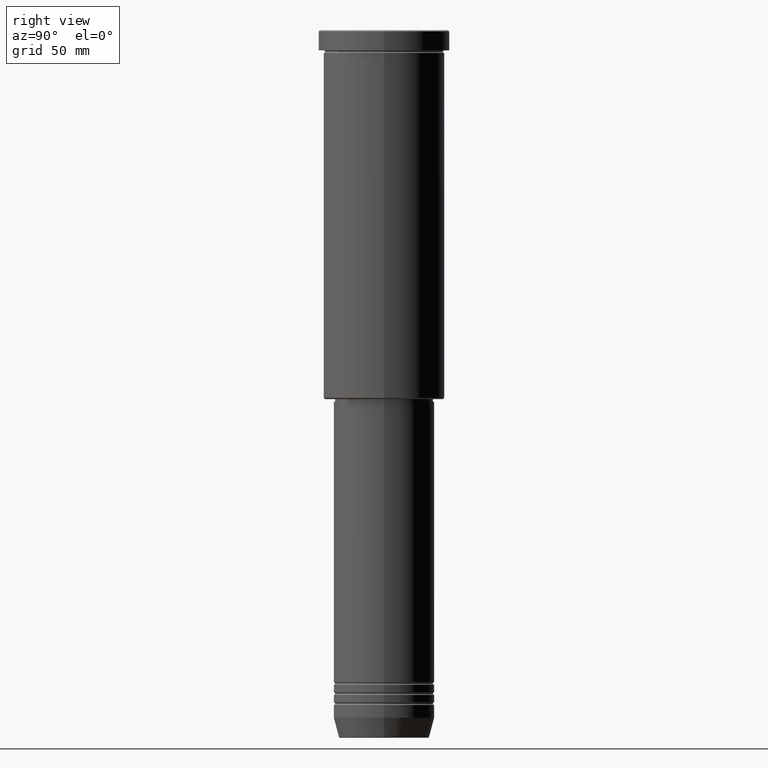
[diagram: clean part render]
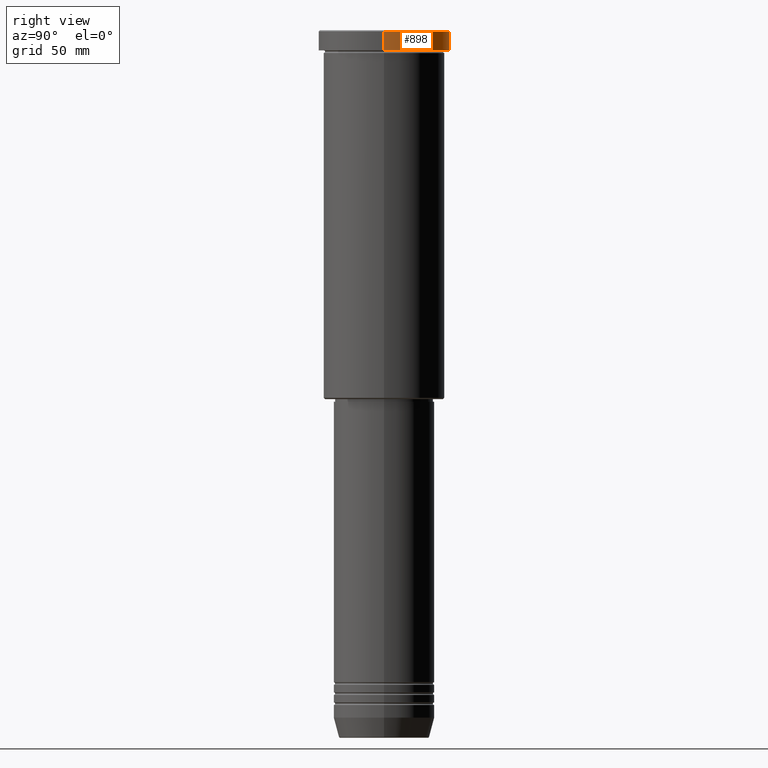
[diagram: same view with one face highlighted and labeled with its STEP entity id]
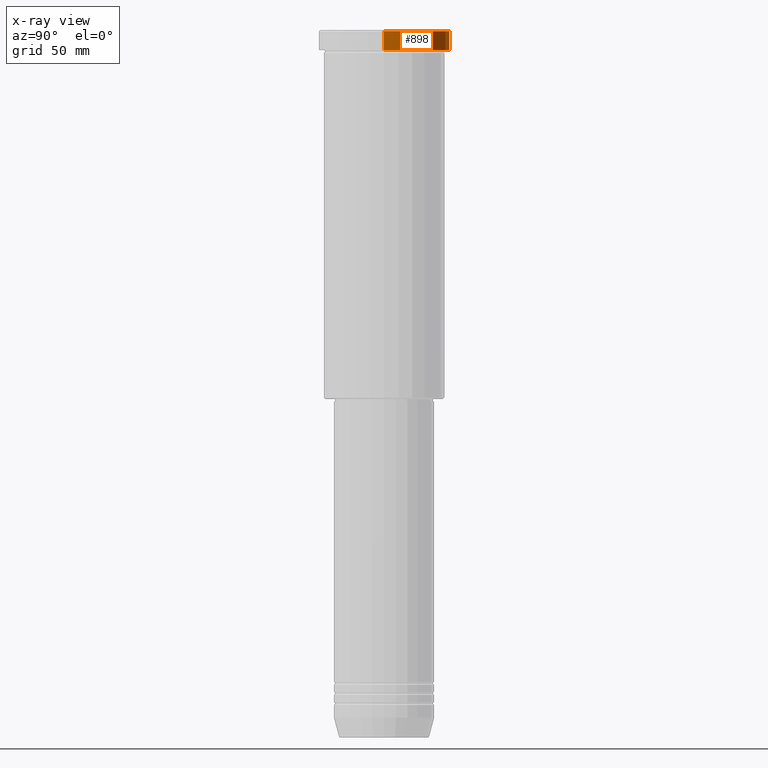
[diagram: x-ray of the same camera — body ghosted, the highlighted face saturated]
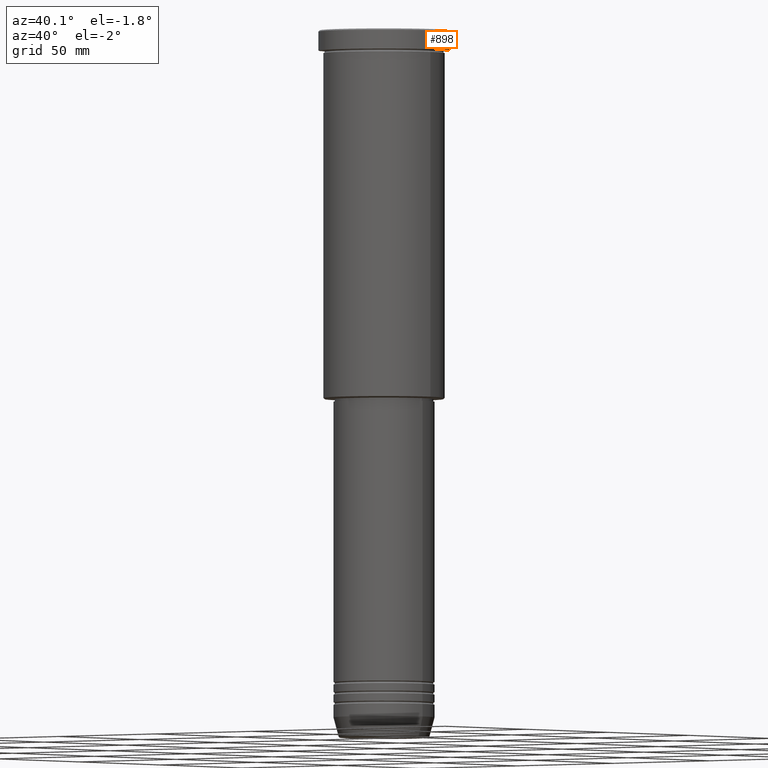
[diagram: same view with one face highlighted and labeled with its STEP entity id]
A machine part, right view. The second image highlights one B-rep face of the part: STEP entity #898.
The next image is the same camera in x-ray: the body ghosted, the highlighted face saturated — about 0% of this face is hidden behind the body in this view.
A second angle (auxiliary view) of the same face is appended — the face is thin or edge-on in the first view.
In plain terms, the highlighted cylindrical surface (partial cylindrical patch) has radius 26 mm, axis along (-0, -0, 1).
Its self-contained STEP definition (entity closure, byte-faithful):
#3 = CARTESIAN_POINT ( 'NONE',  ( 0.000000000000000000, 0.000000000000000000, -0.5000000000000525135 ) ) ;
#23 = DIRECTION ( 'NONE',  ( 1.000000000000000000, 0.000000000000000000, 0.000000000000000000 ) ) ;
#45 = FACE_OUTER_BOUND ( 'NONE', #63, .T. ) ;
#63 = EDGE_LOOP ( 'NONE', ( #905, #684, #192, #468 ) ) ;
#85 = DIRECTION ( 'NONE',  ( 1.000000000000000000, 0.000000000000000000, 0.000000000000000000 ) ) ;
#117 = CARTESIAN_POINT ( 'NONE',  ( 26.00000000000000000, 0.000000000000000000, 0.000000000000000000 ) ) ;
#139 = CYLINDRICAL_SURFACE ( 'NONE', #1042, 26.00000000000000000 ) ;
#142 = VECTOR ( 'NONE', #147, 1000.000000000000000 ) ;
#147 = DIRECTION ( 'NONE',  ( -0.000000000000000000, -0.000000000000000000, 1.000000000000000000 ) ) ;
#192 = ORIENTED_EDGE ( 'NONE', *, *, #233, .T. ) ;
#205 = CARTESIAN_POINT ( 'NONE',  ( 26.00000000000000000, 0.000000000000000000, -7.999999999999992895 ) ) ;
#215 = AXIS2_PLACEMENT_3D ( 'NONE', #305, #895, #85 ) ;
#229 = VERTEX_POINT ( 'NONE', #772 ) ;
#233 = EDGE_CURVE ( 'NONE', #544, #259, #316, .T. ) ;
#239 = LINE ( 'NONE', #480, #142 ) ;
#259 = VERTEX_POINT ( 'NONE', #301 ) ;
#287 = CIRCLE ( 'NONE', #215, 26.00000000000000000 ) ;
#301 = CARTESIAN_POINT ( 'NONE',  ( 26.00000000000000000, 0.000000000000000000, -0.5000000000000525135 ) ) ;
#305 = CARTESIAN_POINT ( 'NONE',  ( 0.000000000000000000, 0.000000000000000000, -7.999999999999992895 ) ) ;
#316 = CIRCLE ( 'NONE', #416, 26.00000000000000000 ) ;
#317 = EDGE_CURVE ( 'NONE', #735, #259, #565, .T. ) ;
#339 = VECTOR ( 'NONE', #1035, 1000.000000000000000 ) ;
#365 = EDGE_CURVE ( 'NONE', #735, #229, #287, .T. ) ;
#376 = DIRECTION ( 'NONE',  ( 0.000000000000000000, 0.000000000000000000, -1.000000000000000000 ) ) ;
#397 = EDGE_CURVE ( 'NONE', #229, #544, #239, .T. ) ;
#416 = AXIS2_PLACEMENT_3D ( 'NONE', #3, #376, #23 ) ;
#468 = ORIENTED_EDGE ( 'NONE', *, *, #317, .F. ) ;
#480 = CARTESIAN_POINT ( 'NONE',  ( -26.00000000000000000, 3.184081677783118191E-15, 0.000000000000000000 ) ) ;
#544 = VERTEX_POINT ( 'NONE', #698 ) ;
#565 = LINE ( 'NONE', #117, #339 ) ;
#684 = ORIENTED_EDGE ( 'NONE', *, *, #397, .T. ) ;
#698 = CARTESIAN_POINT ( 'NONE',  ( -26.00000000000000000, 3.184081677783118191E-15, -0.5000000000000525135 ) ) ;
#735 = VERTEX_POINT ( 'NONE', #205 ) ;
#772 = CARTESIAN_POINT ( 'NONE',  ( -26.00000000000000000, 3.184081677783118191E-15, -7.999999999999992895 ) ) ;
#774 = CARTESIAN_POINT ( 'NONE',  ( 0.000000000000000000, 0.000000000000000000, 0.000000000000000000 ) ) ;
#894 = DIRECTION ( 'NONE',  ( 1.000000000000000000, 0.000000000000000000, 0.000000000000000000 ) ) ;
#895 = DIRECTION ( 'NONE',  ( -0.000000000000000000, -0.000000000000000000, 1.000000000000000000 ) ) ;
#898 = ADVANCED_FACE ( 'NONE', ( #45 ), #139, .T. ) ;
#905 = ORIENTED_EDGE ( 'NONE', *, *, #365, .T. ) ;
#1035 = DIRECTION ( 'NONE',  ( -0.000000000000000000, -0.000000000000000000, 1.000000000000000000 ) ) ;
#1042 = AXIS2_PLACEMENT_3D ( 'NONE', #774, #1137, #894 ) ;
#1137 = DIRECTION ( 'NONE',  ( -0.000000000000000000, -0.000000000000000000, 1.000000000000000000 ) ) ;